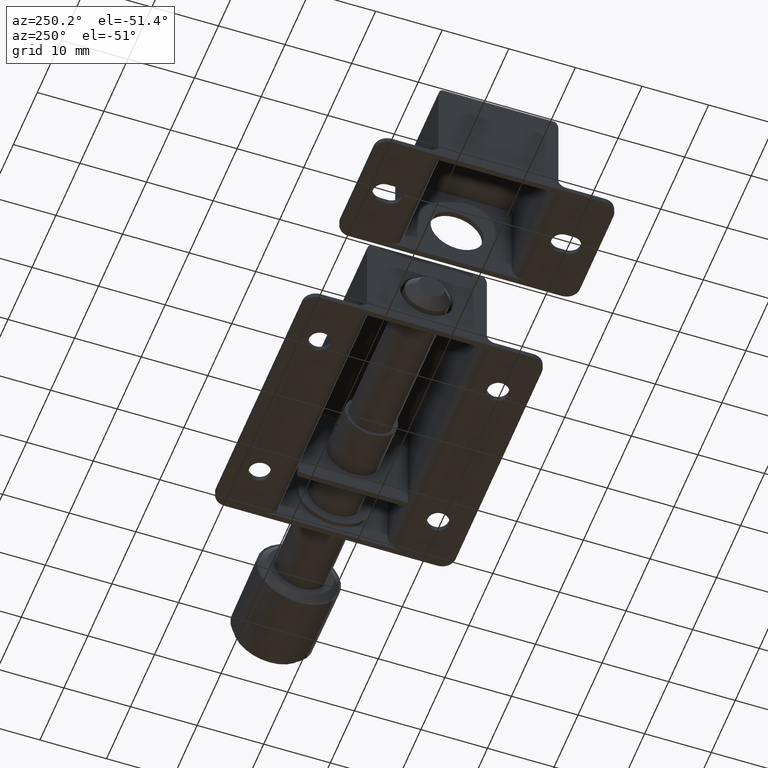
[diagram: clean part render]
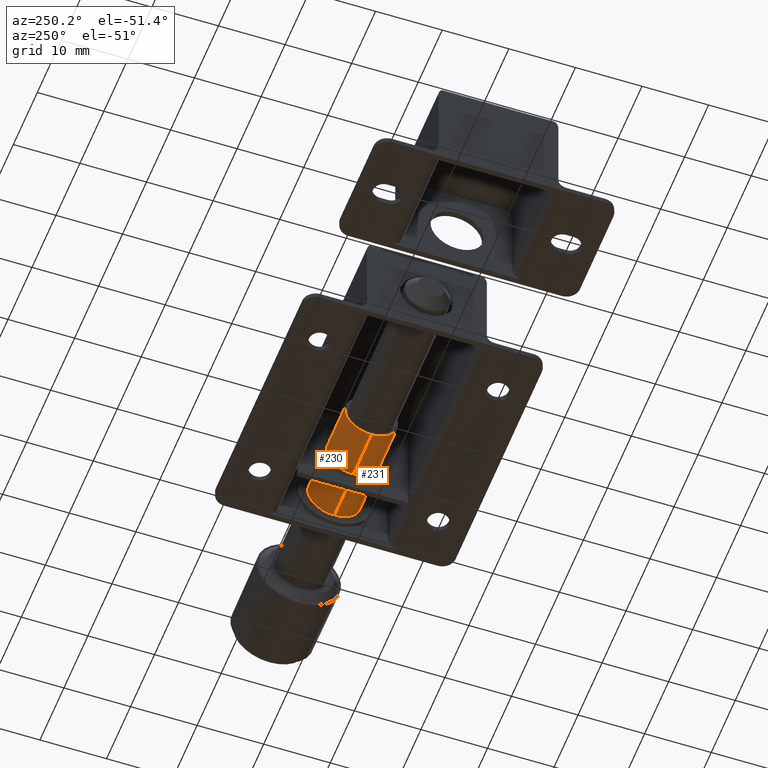
[diagram: same view with one multi-face feature highlighted, each face labeled with its STEP entity id]
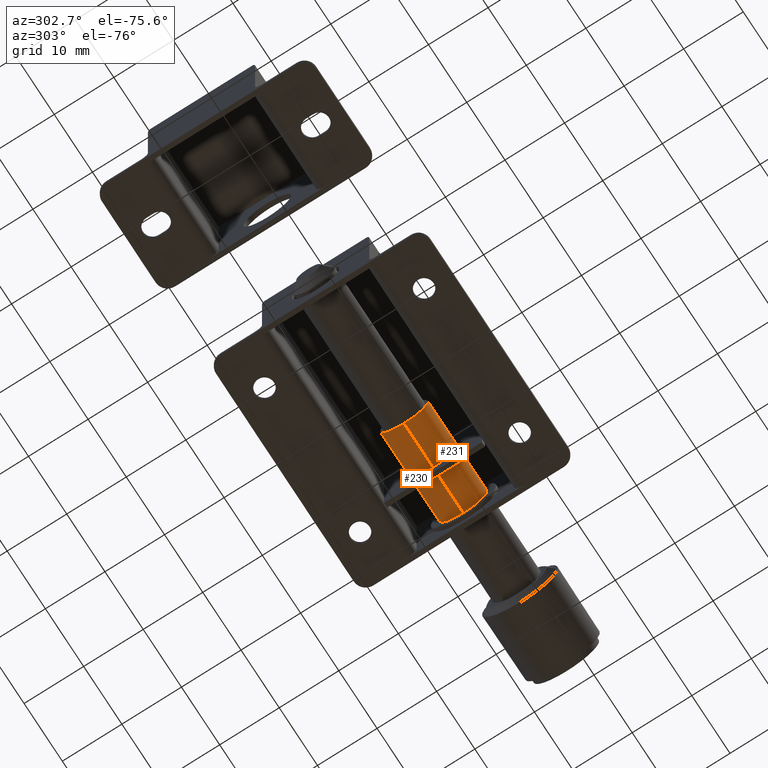
[diagram: same view with one multi-face feature highlighted, each face labeled with its STEP entity id]
A machine part, auxiliary view. The highlighted faces form ONE feature: a constant-radius fillet chain: 2 tangent blend faces with common blend radius 4 mm. The faces share edges in the B-rep.
A second angle (auxiliary view) of the same feature is appended — it is thin or edge-on in the first view.
Their STEP definitions:
[1] entity #230 (Cylinder):
#230=ADVANCED_FACE('',(#1112),#1111,.T.);
#1111=CYLINDRICAL_SURFACE('',#2094,4.00000000000E+00);
#1112=FACE_OUTER_BOUND('',#2095,.T.);
#2091=CARTESIAN_POINT('',(0.00000000000E+00,0.00000000000E+00,6.20000000000E+00));
#2092=DIRECTION('',(1.00000000000E+00,-0.00000000000E+00,-0.00000000000E+00));
#2093=DIRECTION('',(-0.00000000000E+00,-0.00000000000E+00,-1.00000000000E+00));
#2094=AXIS2_PLACEMENT_3D('',#2091,#2092,#2093);
#2095=EDGE_LOOP('',(#2777,#2778,#2779,#2780));
#2777=ORIENTED_EDGE('',*,*,#3223,.T.);
#2778=ORIENTED_EDGE('',*,*,#3248,.F.);
#2779=ORIENTED_EDGE('',*,*,#3216,.F.);
#2780=ORIENTED_EDGE('',*,*,#3249,.T.);
#3216=EDGE_CURVE('',#4584,#4585,#4586,.T.);
#3223=EDGE_CURVE('',#4627,#4626,#4634,.T.);
#3248=EDGE_CURVE('',#4585,#4626,#4802,.T.);
#3249=EDGE_CURVE('',#4584,#4627,#4808,.T.);
#4584=VERTEX_POINT('',#6349);
#4585=VERTEX_POINT('',#6350);
#4586=CIRCLE('',#6354,4.00000000000E+00);
#4626=VERTEX_POINT('',#6379);
#4627=VERTEX_POINT('',#6380);
#4634=CIRCLE('',#6388,4.00000000000E+00);
#4802=(BOUNDED_CURVE() B_SPLINE_CURVE(1,(#6491,#6492),.UNSPECIFIED.,.F.,.F.) B_SPLINE_CURVE_WITH_KNOTS((2,2),(8.33333328360E-02,9.16666665505E-01),.UNSPECIFIED.) CURVE() GEOMETRIC_REPRESENTATION_ITEM() RATIONAL_B_SPLINE_CURVE((1.00000000000E+00,1.00000000000E+00)) REPRESENTATION_ITEM('') );
#4808=(BOUNDED_CURVE() B_SPLINE_CURVE(1,(#6493,#6494),.UNSPECIFIED.,.F.,.F.) B_SPLINE_CURVE_WITH_KNOTS((2,2),(8.33333333333E-02,9.16666666667E-01),.UNSPECIFIED.) CURVE() GEOMETRIC_REPRESENTATION_ITEM() RATIONAL_B_SPLINE_CURVE((7.50000000000E-01,7.50000000000E-01)) REPRESENTATION_ITEM('') );
#6349=CARTESIAN_POINT('',(1.56000000000E+01,0.00000000000E+00,1.02000000000E+01));
#6350=CARTESIAN_POINT('',(1.56000000000E+01,4.44089209850E-16,2.20000000000E+00));
#6351=CARTESIAN_POINT('',(1.56000000000E+01,0.00000000000E+00,6.20000000000E+00));
#6352=DIRECTION('',(-1.00000000000E+00,0.00000000000E+00,0.00000000000E+00));
#6353=DIRECTION('',(0.00000000000E+00,-1.22460635382E-16,1.00000000000E+00));
#6354=AXIS2_PLACEMENT_3D('',#6351,#6352,#6353);
#6379=CARTESIAN_POINT('',(3.11000000000E+01,4.44089209850E-16,2.20000000000E+00));
#6380=CARTESIAN_POINT('',(3.11000000000E+01,0.00000000000E+00,1.02000000000E+01));
#6385=CARTESIAN_POINT('',(3.11000000000E+01,0.00000000000E+00,6.20000000000E+00));
#6386=DIRECTION('',(-1.00000000000E+00,0.00000000000E+00,0.00000000000E+00));
#6387=DIRECTION('',(0.00000000000E+00,-1.22460635382E-16,1.00000000000E+00));
#6388=AXIS2_PLACEMENT_3D('',#6385,#6386,#6387);
#6491=CARTESIAN_POINT('',(1.55999999907E+01,0.00000000000E+00,2.20000000000E+00));
#6492=CARTESIAN_POINT('',(3.10999999784E+01,0.00000000000E+00,2.20000000000E+00));
#6493=CARTESIAN_POINT('',(1.56000000000E+01,-1.48029736617E-16,1.02000000000E+01));
#6494=CARTESIAN_POINT('',(3.11000000000E+01,-1.48029736617E-16,1.02000000000E+01));
[2] entity #231 (Cylinder):
#231=ADVANCED_FACE('',(#1122),#1121,.T.);
#1121=CYLINDRICAL_SURFACE('',#2099,4.00000000000E+00);
#1122=FACE_OUTER_BOUND('',#2100,.T.);
#2096=CARTESIAN_POINT('',(0.00000000000E+00,0.00000000000E+00,6.20000000000E+00));
#2097=DIRECTION('',(1.00000000000E+00,-0.00000000000E+00,-0.00000000000E+00));
#2098=DIRECTION('',(-0.00000000000E+00,-0.00000000000E+00,-1.00000000000E+00));
#2099=AXIS2_PLACEMENT_3D('',#2096,#2097,#2098);
#2100=EDGE_LOOP('',(#2781,#2782,#2783,#2784));
#2781=ORIENTED_EDGE('',*,*,#3217,.F.);
#2782=ORIENTED_EDGE('',*,*,#3248,.T.);
#2783=ORIENTED_EDGE('',*,*,#3222,.T.);
#2784=ORIENTED_EDGE('',*,*,#3249,.F.);
#3217=EDGE_CURVE('',#4585,#4584,#4592,.T.);
#3222=EDGE_CURVE('',#4626,#4627,#4628,.T.);
#3248=EDGE_CURVE('',#4585,#4626,#4802,.T.);
#3249=EDGE_CURVE('',#4584,#4627,#4808,.T.);
#4584=VERTEX_POINT('',#6349);
#4585=VERTEX_POINT('',#6350);
#4592=CIRCLE('',#6358,4.00000000000E+00);
#4626=VERTEX_POINT('',#6379);
#4627=VERTEX_POINT('',#6380);
#4628=CIRCLE('',#6384,4.00000000000E+00);
#4802=(BOUNDED_CURVE() B_SPLINE_CURVE(1,(#6491,#6492),.UNSPECIFIED.,.F.,.F.) B_SPLINE_CURVE_WITH_KNOTS((2,2),(8.33333328360E-02,9.16666665505E-01),.UNSPECIFIED.) CURVE() GEOMETRIC_REPRESENTATION_ITEM() RATIONAL_B_SPLINE_CURVE((1.00000000000E+00,1.00000000000E+00)) REPRESENTATION_ITEM('') );
#4808=(BOUNDED_CURVE() B_SPLINE_CURVE(1,(#6493,#6494),.UNSPECIFIED.,.F.,.F.) B_SPLINE_CURVE_WITH_KNOTS((2,2),(8.33333333333E-02,9.16666666667E-01),.UNSPECIFIED.) CURVE() GEOMETRIC_REPRESENTATION_ITEM() RATIONAL_B_SPLINE_CURVE((7.50000000000E-01,7.50000000000E-01)) REPRESENTATION_ITEM('') );
#6349=CARTESIAN_POINT('',(1.56000000000E+01,0.00000000000E+00,1.02000000000E+01));
#6350=CARTESIAN_POINT('',(1.56000000000E+01,4.44089209850E-16,2.20000000000E+00));
#6355=CARTESIAN_POINT('',(1.56000000000E+01,0.00000000000E+00,6.20000000000E+00));
#6356=DIRECTION('',(-1.00000000000E+00,0.00000000000E+00,0.00000000000E+00));
#6357=DIRECTION('',(0.00000000000E+00,-1.22460635382E-16,1.00000000000E+00));
#6358=AXIS2_PLACEMENT_3D('',#6355,#6356,#6357);
#6379=CARTESIAN_POINT('',(3.11000000000E+01,4.44089209850E-16,2.20000000000E+00));
#6380=CARTESIAN_POINT('',(3.11000000000E+01,0.00000000000E+00,1.02000000000E+01));
#6381=CARTESIAN_POINT('',(3.11000000000E+01,0.00000000000E+00,6.20000000000E+00));
#6382=DIRECTION('',(-1.00000000000E+00,0.00000000000E+00,0.00000000000E+00));
#6383=DIRECTION('',(0.00000000000E+00,-1.22460635382E-16,1.00000000000E+00));
#6384=AXIS2_PLACEMENT_3D('',#6381,#6382,#6383);
#6491=CARTESIAN_POINT('',(1.55999999907E+01,0.00000000000E+00,2.20000000000E+00));
#6492=CARTESIAN_POINT('',(3.10999999784E+01,0.00000000000E+00,2.20000000000E+00));
#6493=CARTESIAN_POINT('',(1.56000000000E+01,-1.48029736617E-16,1.02000000000E+01));
#6494=CARTESIAN_POINT('',(3.11000000000E+01,-1.48029736617E-16,1.02000000000E+01));